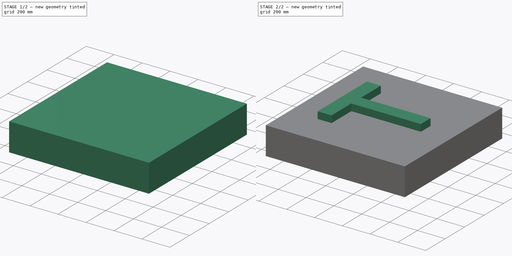
[diagram: build sequence overview — one tinted view per stage of 2, left to right]
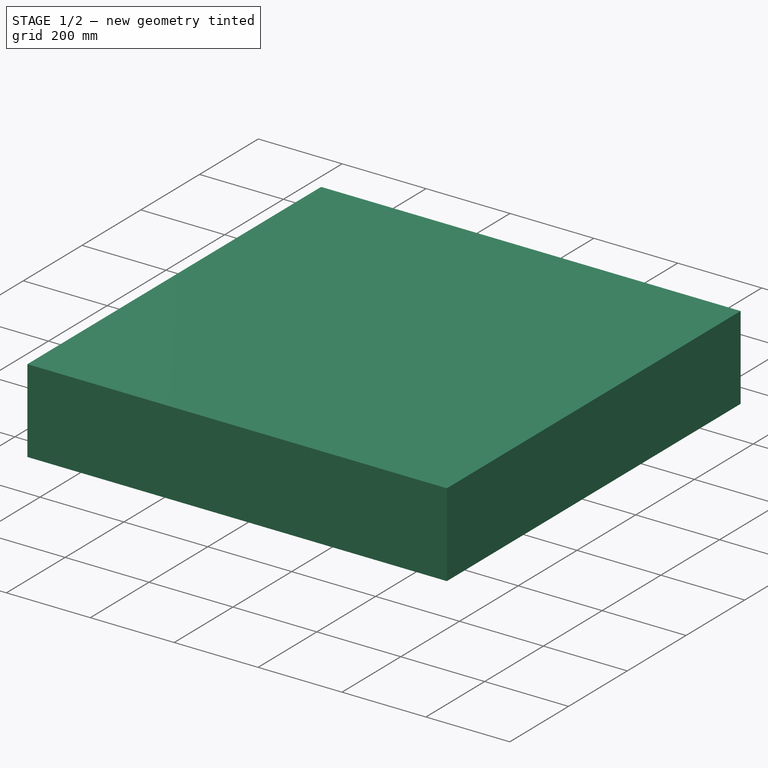
[diagram: stage 1 of 2 — iso view after this stage's code; geometry added in this stage tinted green]
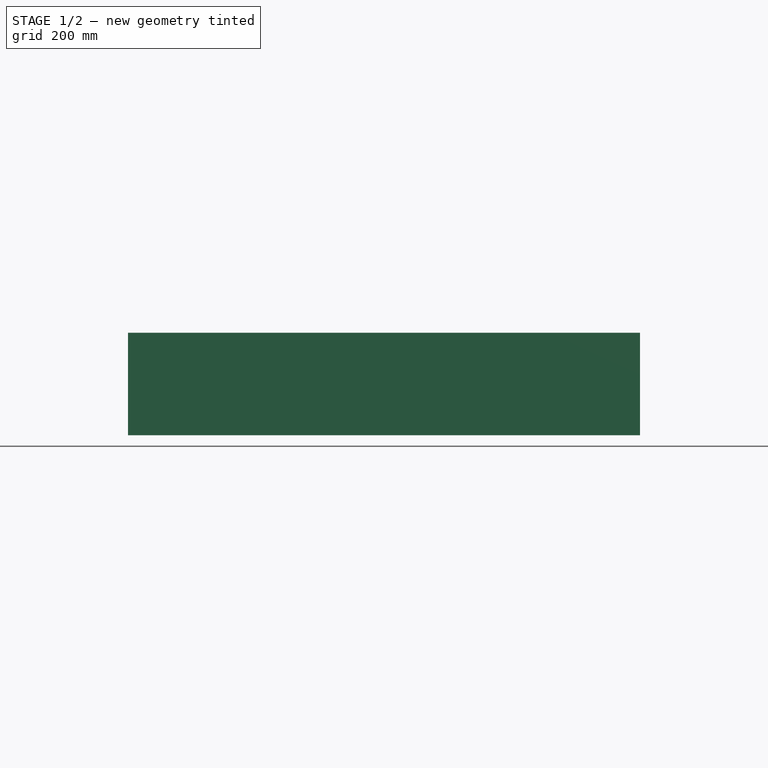
[diagram: stage 1 of 2 — front view after this stage's code; geometry added in this stage tinted green]
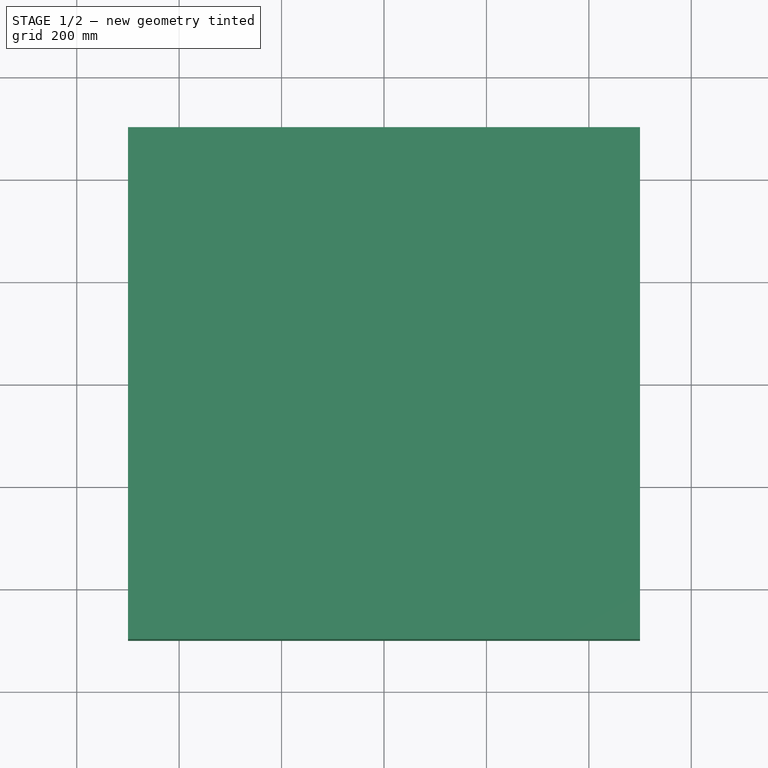
[diagram: stage 1 of 2 — top view after this stage's code; geometry added in this stage tinted green]
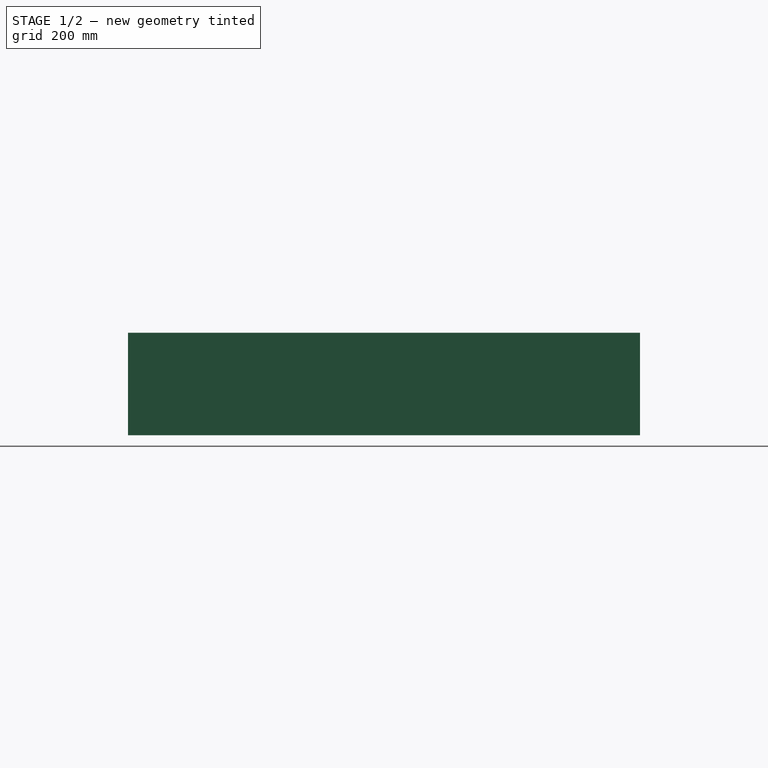
[diagram: stage 1 of 2 — right view after this stage's code; geometry added in this stage tinted green]
FCSTD DOCUMENT  (FreeCAD 0.16R6706 (Git))
Label: embossed
License: All rights reserved
LicenseURL: http://en.wikipedia.org/wiki/All_rights_reserved
objects: Sketcher::SketchObject×2, PartDesign::Pad×2, Drawing::FeatureViewPart×1, Drawing::FeaturePage×1
note: 6 computed .brp shape members not serialized (recipe doc carries the construction recipe); baked Part::Feature solids carry a one-line shape summary decoded from their .brp

FEATURE [Sketcher::SketchObject] Sketch
  sketch-geometry (4):
    g0: LineSegment StartX=-500 StartY=500 StartZ=0 EndX=500 EndY=500 EndZ=0
    g1: LineSegment StartX=500 StartY=500 StartZ=0 EndX=500 EndY=-500 EndZ=0
    g2: LineSegment StartX=500 StartY=-500 StartZ=0 EndX=-500 EndY=-500 EndZ=0
    g3: LineSegment StartX=-500 StartY=-500 StartZ=0 EndX=-500 EndY=500 EndZ=0
  constraints (11):
    c: Coincident(g0,g1)
    c: Coincident(g1,g2)
    c: Coincident(g2,g3)
    c: Coincident(g3,g0)
    c: Horizontal(g0)
    c: Horizontal(g2)
    c: Vertical(g1)
    c: Vertical(g3)
    c: DistanceX(g0,g0) = 1000
    c: DistanceY(g1,g1) = 1000
    c: Symmetric(g1,g0,g-1)
FEATURE [PartDesign::Pad] Pad
  Length = 200
  Length2 = 100
  Sketch = -> Sketch
  Type = 0
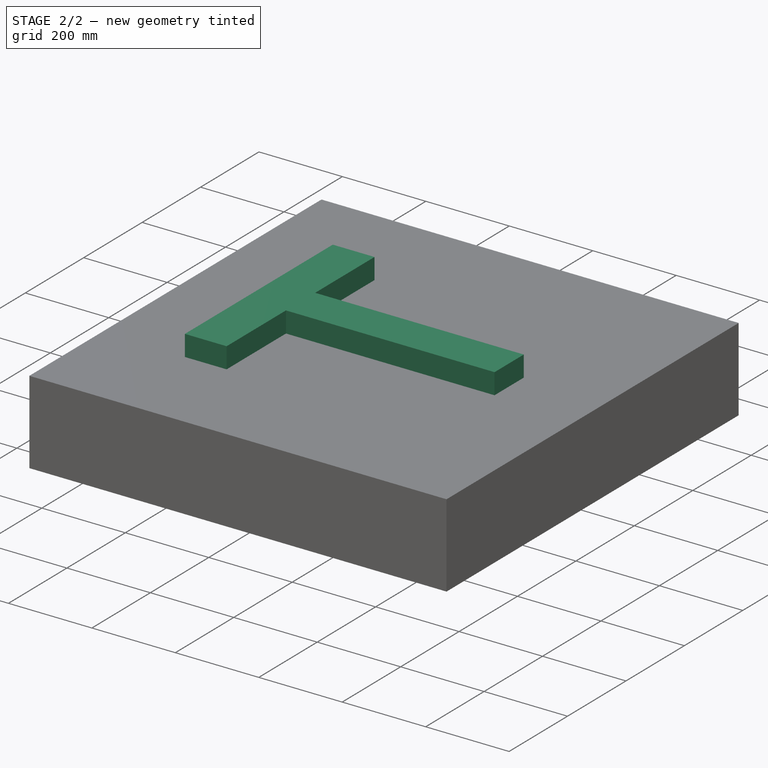
[diagram: stage 2 of 2 — iso view after this stage's code; geometry added in this stage tinted green]
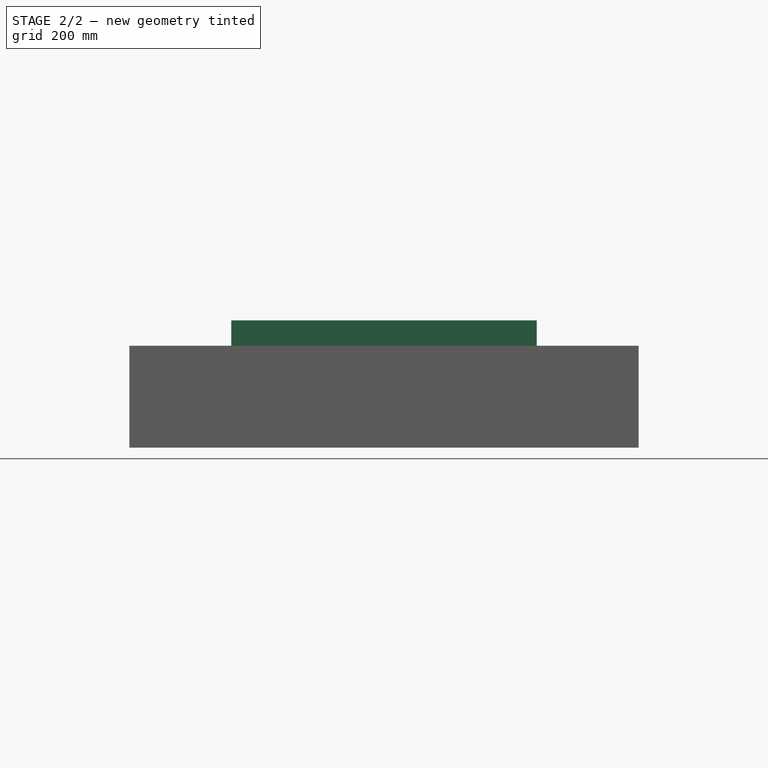
[diagram: stage 2 of 2 — front view after this stage's code; geometry added in this stage tinted green]
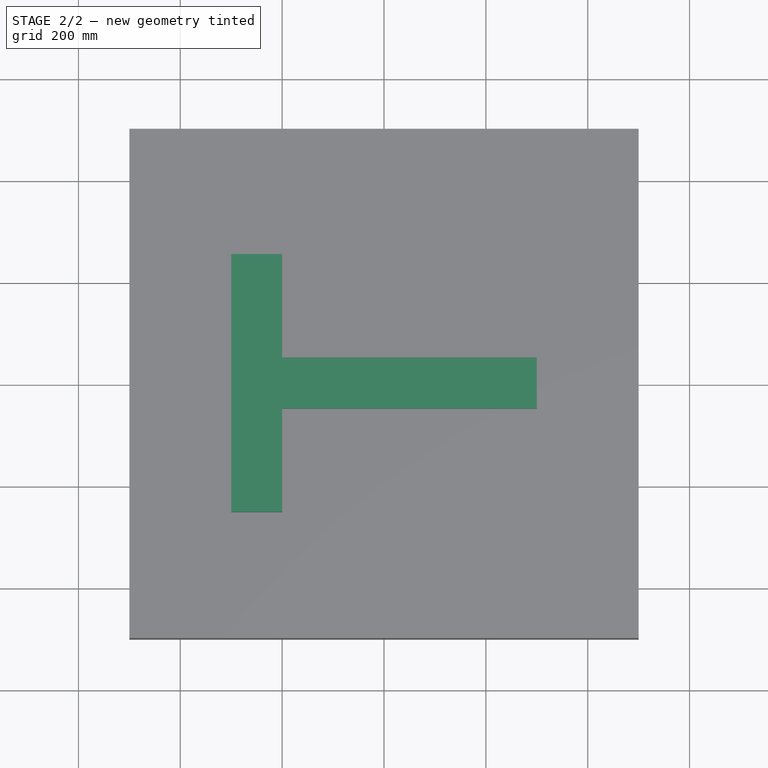
[diagram: stage 2 of 2 — top view after this stage's code; geometry added in this stage tinted green]
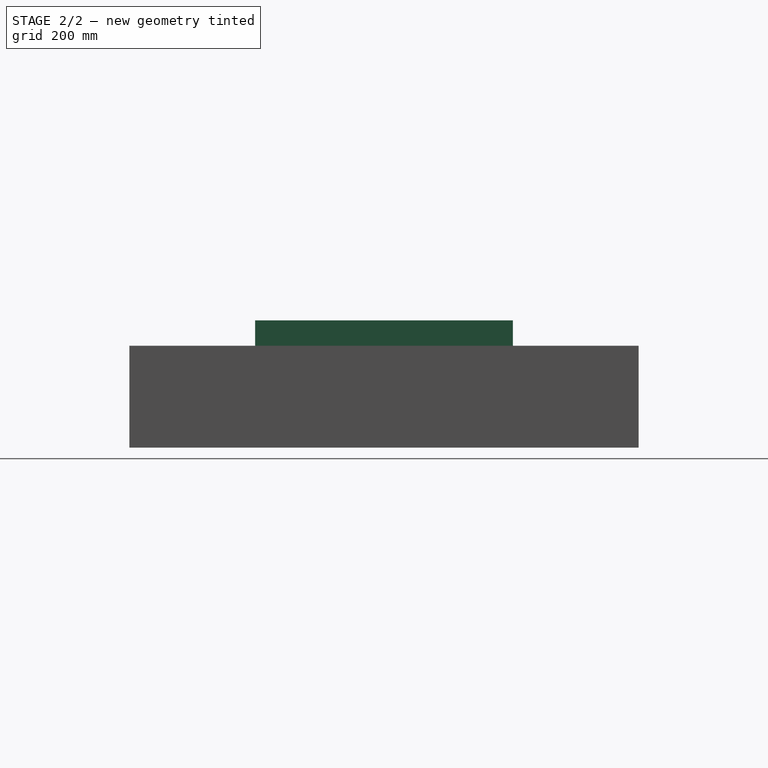
[diagram: stage 2 of 2 — right view after this stage's code; geometry added in this stage tinted green]
FEATURE [Sketcher::SketchObject] Sketch001
  Placement = pos=(0,0,200) rot=(0,0,1;0rad)
  Support = -> Pad [Face6]
  sketch-geometry (8):
    g0: LineSegment StartX=-300 StartY=253.106 StartZ=0 EndX=-300 EndY=-253.106 EndZ=0
    g1: LineSegment StartX=-300 StartY=-253.106 StartZ=0 EndX=-200 EndY=-253.106 EndZ=0
    g2: LineSegment StartX=-200 StartY=-253.106 StartZ=0 EndX=-200 EndY=-50 EndZ=0
    g3: LineSegment StartX=-200 StartY=-50 StartZ=0 EndX=300 EndY=-50 EndZ=0
    g4: LineSegment StartX=300 StartY=-50 StartZ=0 EndX=300 EndY=50 EndZ=0
    g5: LineSegment StartX=300 StartY=50 StartZ=0 EndX=-200 EndY=50 EndZ=0
    g6: LineSegment StartX=-200 StartY=50 StartZ=0 EndX=-200 EndY=253.106 EndZ=0
    g7: LineSegment StartX=-200 StartY=253.106 StartZ=0 EndX=-300 EndY=253.106 EndZ=0
  constraints (22):
    c: Vertical(g0)
    c: Coincident(g0,g1)
    c: Horizontal(g1)
    c: Coincident(g1,g2)
    c: Vertical(g2)
    c: Coincident(g2,g3)
    c: Horizontal(g3)
    c: Coincident(g3,g4)
    c: Coincident(g4,g5)
    c: Horizontal(g5)
    c: Coincident(g5,g6)
    c: Vertical(g6)
    c: Coincident(g6,g7)
    c: Coincident(g7,g0)
    c: Horizontal(g7)
    c: Vertical(g4)
    c: Symmetric(g5,g2,g-1)
    c: DistanceX(g7,g7) = 100
    c: DistanceY(g4,g4) = 100
    c: Equal(g6,g2)
    c: DistanceX(g5,g-1) = 200
    c: DistanceX(g-1,g4) = 300
FEATURE [PartDesign::Pad] Pad001
  Length = 50
  Length2 = 100
  Sketch = -> Sketch001
  Type = 0
FEATURE [Drawing::FeatureViewPart] View
  Direction = (1,-1,1)
  HiddenWidth = 0.15
  LineWidth = 0.35
  Rotation = 60
  Scale = 0.1
  ShowHiddenLines = false
  ShowSmoothLines = false
  Source = -> Pad001
  Tolerance = 0.05
  ViewResult = <g id="View"\n   transform="rotate(60,105,156.665) translate(105,156.665) scale(0.1,0.1)"\n  >\n<g   stroke="rgb(0, 0, 0)"\n   stroke-width="3.5"\n   stroke-linecap="butt"\n   stroke-linejoin="miter"\n   fill="none"\n   transform="scale(1,-1)"\n  >\n<path id= "1" d=" M 353.553 612.372 L 212.132 694.022 " />\n<path id= "2" d=" M -494.975 285.774 L 212.132 694.022 " />\n<path id= "3" d=" M -353.553 -612.372 L -494.975 -530.723 " />\n<path id= "4" d=" M -494.975 -530.723 L -494.975 285.774 " />\n<path id= "5" d=" M 353.553 -204.124 L 212.132 -122.474 " />\n<path id= "6" d=" M 353.553 612.372 L 353.553 -204.124 " />\n<path id= "7" d=" M 212.132 694.022 L 212.132 -122.474 " />\n<path id= "8" d=" M 353.553 -204.124 L -353.553 -612.372 " />\n<path id= "9" d=" M 212.132 -122.474 L -494.975 -530.723 " />\n<path id= "10" d=" M -282.843 -206.66 L -282.843 -40.8248 " />\n<path id= "11" d=" M -282.843 -40.8248 L 70.7107 163.299 " />\n<path id= "12" d=" M 70.7107 163.299 L 70.7107 244.949 " />\n<path id= "13" d=" M -282.843 81.6497 L -282.843 206.66 " />\n<path id= "14" d=" M -353.553 -247.485 L -282.843 -206.66 " />\n<path id= "15" d=" M -282.843 -206.66 L -318.198 -186.248 " />\n<path id= "16" d=" M -318.198 -186.248 L -318.198 -20.4124 " />\n<path id= "17" d=" M -282.843 -40.8248 L -318.198 -20.4124 " />\n<path id= "18" d=" M -318.198 -20.4124 L 35.3553 183.712 " />\n<path id= "19" d=" M 70.7107 163.299 L 35.3553 183.712 " />\n<path id= "20" d=" M 35.3553 183.712 L 35.3553 265.361 " />\n<path id= "21" d=" M 70.7107 244.949 L 35.3553 265.361 " />\n<path id= "22" d=" M 35.3553 265.361 L -318.198 61.2372 " />\n<path id= "23" d=" M -318.198 61.2372 L -318.198 227.072 " />\n<path id= "24" d=" M -282.843 206.66 L -318.198 227.072 " />\n<path id= "25" d=" M -318.198 227.072 L -388.909 186.248 " />\n<path id= "26" d=" M -388.909 186.248 L -388.909 -227.072 " />\n<path id= "27" d=" M -353.553 -247.485 L -388.909 -227.072 " />\n<path id= "28" d=" M -388.909 -227.072 L -318.198 -186.248 " />\n</g>\n</g>
  Visible = true
  X = 105
  Y = 156.665
FEATURE [Drawing::FeaturePage] Page
  Group = -> [View]
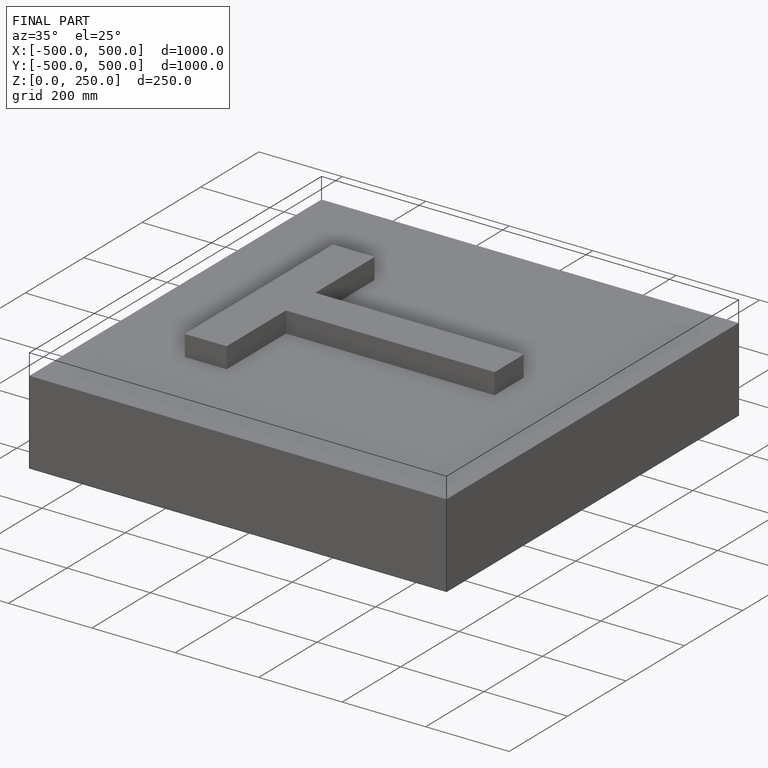
[diagram: finished part — iso view with bounding-box wireframe]
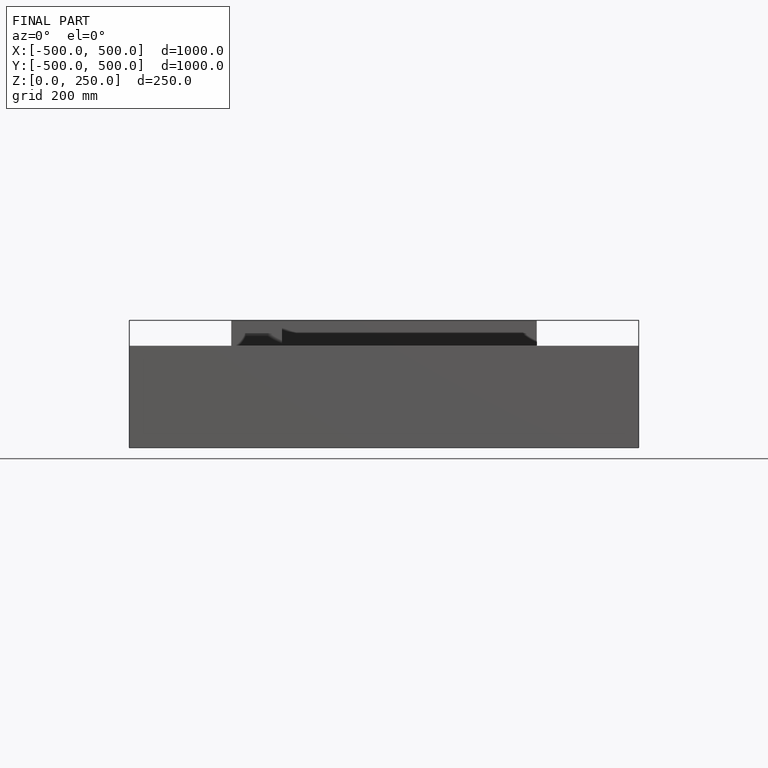
[diagram: finished part — front view with bounding-box wireframe]
